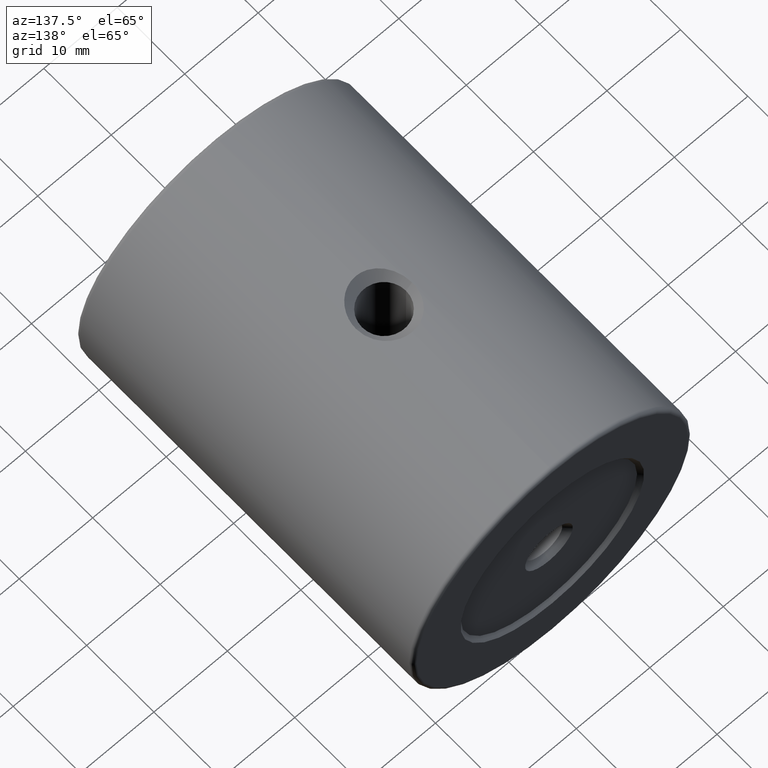
[diagram: clean part render]
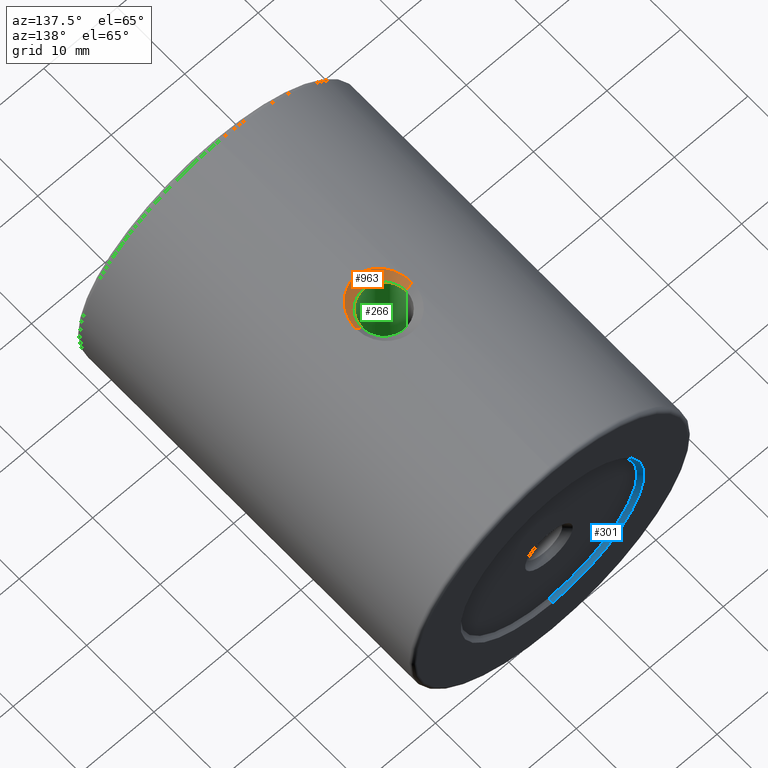
[diagram: same view with three faces highlighted in distinct colors, each labeled with its STEP entity id]
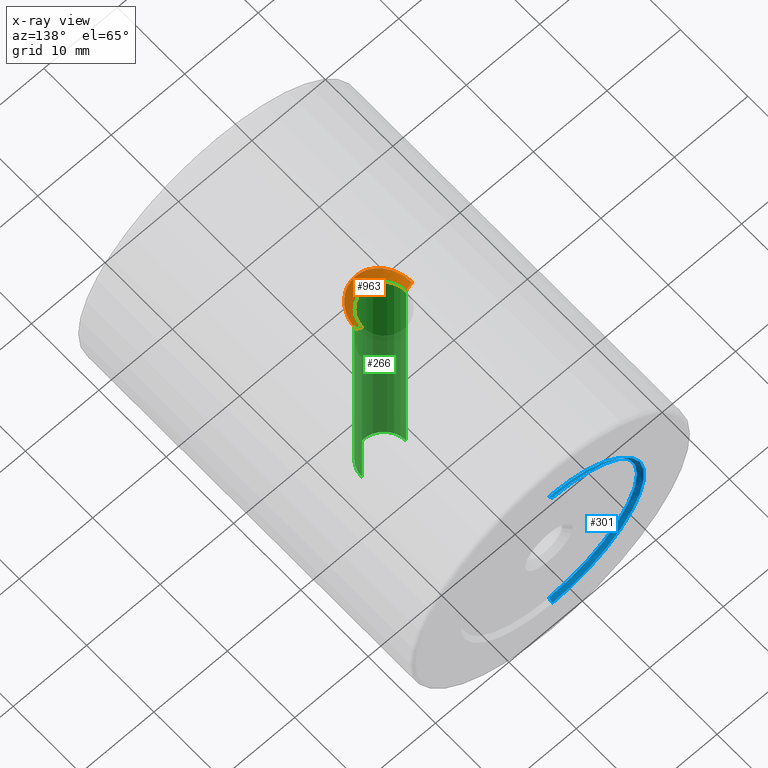
[diagram: x-ray of the same camera — body ghosted, the three highlighted faces saturated]
A machine part, auxiliary view with three faces highlighted in distinct colors.
The next image is the same camera in x-ray (body ghosted, the three faces saturated) — at least one of them is partly hidden behind the body in this view.
Their STEP definitions:

[orange] entity #963 — the highlighted conical surface has half-angle 45 deg.
#20 = CARTESIAN_POINT ( 'NONE',  ( -88.86003986455601478, -5.560364975193093251, 418.6496055284342788 ) ) ;
#25 = CARTESIAN_POINT ( 'NONE',  ( -81.88059113652985843, -6.288202399889226690, 418.7034922552546163 ) ) ;
#36 = VERTEX_POINT ( 'NONE', #340 ) ;
#45 = CARTESIAN_POINT ( 'NONE',  ( -87.61973751830021229, -7.539048035020909921, 418.8498653824453868 ) ) ;
#88 = DIRECTION ( 'NONE',  ( -0.7071067811865487940, 0.0000000000000000000, 0.7071067811865463515 ) ) ;
#90 = CARTESIAN_POINT ( 'NONE',  ( -89.04018469271750291, -4.524194045943173315, 418.6133848591762217 ) ) ;
#93 = EDGE_LOOP ( 'NONE', ( #197, #983, #478, #651, #832 ) ) ;
#101 = CARTESIAN_POINT ( 'NONE',  ( -82.29671814351611658, -6.957786961682561611, 418.7735023986901979 ) ) ;
#107 = CARTESIAN_POINT ( 'NONE',  ( -81.43586367851925445, -4.785232307264688068, 418.6180255036908306 ) ) ;
#111 = VECTOR ( 'NONE', #88, 1000.000000000000000 ) ;
#116 = CARTESIAN_POINT ( 'NONE',  ( -85.49146371113677390, -8.461339991674272198, 419.0000000000001705 ) ) ;
#117 = CARTESIAN_POINT ( 'NONE',  ( -82.63814515825626472, -7.352595677616392322, 418.8236191524364926 ) ) ;
#119 = DIRECTION ( 'NONE',  ( 0.0000000000000000000, 0.0000000000000000000, -1.000000000000000000 ) ) ;
#143 = CONICAL_SURFACE ( 'NONE', #724, 4.200000000000009059, 0.7853981633974500554 ) ;
#158 = DIRECTION ( 'NONE',  ( 0.7071067811865487940, -8.659560562354948882E-17, 0.7071067811865463515 ) ) ;
#197 = ORIENTED_EDGE ( 'NONE', *, *, #529, .F. ) ;
#231 = EDGE_CURVE ( 'NONE', #36, #260, #587, .T. ) ;
#233 = CARTESIAN_POINT ( 'NONE',  ( -89.42679983354143758, -4.261339991674283567, 419.0000000000000568 ) ) ;
#257 = CARTESIAN_POINT ( 'NONE',  ( -83.46626106639050136, -7.995107640163255702, 418.9197388689088370 ) ) ;
#260 = VERTEX_POINT ( 'NONE', #681 ) ;
#274 = CARTESIAN_POINT ( 'NONE',  ( -84.96243902164792416, -8.461339991674275751, 419.0000000000001137 ) ) ;
#287 = CARTESIAN_POINT ( 'NONE',  ( -87.20501299645449933, -7.859601616013272007, 418.8978900510489325 ) ) ;
#318 = CARTESIAN_POINT ( 'NONE',  ( -85.22679983354142053, -4.261339991674283567, 419.0000000000000568 ) ) ;
#332 = CARTESIAN_POINT ( 'NONE',  ( -89.01782207825233684, -4.784939022142112641, 418.6180084472278509 ) ) ;
#334 = EDGE_CURVE ( 'NONE', #260, #991, #646, .T. ) ;
#338 = CARTESIAN_POINT ( 'NONE',  ( -88.68189959692058721, -6.053472744008438156, 418.6834286230944713 ) ) ;
#340 = CARTESIAN_POINT ( 'NONE',  ( -82.22679983354142053, -4.261339991674283567, 417.8000000000000114 ) ) ;
#344 = CARTESIAN_POINT ( 'NONE',  ( -88.30796467933343763, -6.745178320961991325, 418.7489826282481999 ) ) ;
#437 = CARTESIAN_POINT ( 'NONE',  ( -82.14309753980985818, -6.741247472261910012, 418.7485603540634429 ) ) ;
#442 = DIRECTION ( 'NONE',  ( 1.000000000000000000, 0.0000000000000000000, 0.0000000000000000000 ) ) ;
#444 = CARTESIAN_POINT ( 'NONE',  ( -85.75119431850812646, -8.431120250548380213, 418.9944772180206769 ) ) ;
#450 = VECTOR ( 'NONE', #158, 1000.000000000000000 ) ;
#451 = LINE ( 'NONE', #768, #450 ) ;
#478 = ORIENTED_EDGE ( 'NONE', *, *, #334, .T. ) ;
#503 = CARTESIAN_POINT ( 'NONE',  ( -85.22679983354142053, -4.261339991674283567, 417.8000000000000114 ) ) ;
#506 = CARTESIAN_POINT ( 'NONE',  ( -85.22679983354142053, -8.461339991674268646, 419.0000000000000568 ) ) ;
#529 = EDGE_CURVE ( 'NONE', #36, #952, #451, .T. ) ;
#532 = CARTESIAN_POINT ( 'NONE',  ( -85.22679983354142053, -8.461339991674268646, 419.0000000000000568 ) ) ;
#552 = CARTESIAN_POINT ( 'NONE',  ( -85.22679983354142053, -8.461339991674268646, 419.0000000000000568 ) ) ;
#574 = CARTESIAN_POINT ( 'NONE',  ( -88.57188684336087192, -6.290580469037319489, 418.7036980113034588 ) ) ;
#584 = CARTESIAN_POINT ( 'NONE',  ( -81.59285872774556481, -5.558021363143371474, 418.6494685149854149 ) ) ;
#587 = CIRCLE ( 'NONE', #838, 3.000000000000002665 ) ;
#589 = CARTESIAN_POINT ( 'NONE',  ( -81.77082803723338600, -6.051458313143361245, 418.6832669197586370 ) ) ;
#605 = VERTEX_POINT ( 'NONE', #552 ) ;
#634 = DIRECTION ( 'NONE',  ( -0.0000000000000000000, -0.0000000000000000000, 1.000000000000000000 ) ) ;
#646 = LINE ( 'NONE', #233, #111 ) ;
#649 = CARTESIAN_POINT ( 'NONE',  ( -88.92822251687863400, -5.302205923223622719, 418.6360285018084824 ) ) ;
#651 = ORIENTED_EDGE ( 'NONE', *, *, #763, .T. ) ;
#660 = CARTESIAN_POINT ( 'NONE',  ( -88.15440500365676257, -6.961092752758728963, 418.7738934117829217 ) ) ;
#661 = CARTESIAN_POINT ( 'NONE',  ( -84.18986350246656514, -8.312315706571794749, 418.9733988301109093 ) ) ;
#670 = CARTESIAN_POINT ( 'NONE',  ( -81.52508446630257311, -5.300719478809653218, 418.6359698950037682 ) ) ;
#680 = CARTESIAN_POINT ( 'NONE',  ( -83.93808702169893365, -8.222923423920713404, 418.9577223027167747 ) ) ;
#681 = CARTESIAN_POINT ( 'NONE',  ( -88.22679983354142053, -4.261339991674283567, 417.8000000000000114 ) ) ;
#695 = CARTESIAN_POINT ( 'NONE',  ( -86.98410511525524669, -7.996885633606630961, 418.9200298249307366 ) ) ;
#699 = CARTESIAN_POINT ( 'NONE',  ( -89.04018469271751712, -4.261339991674283567, 418.6133848591761648 ) ) ;
#724 = AXIS2_PLACEMENT_3D ( 'NONE', #318, #634, #859 ) ;
#748 = CARTESIAN_POINT ( 'NONE',  ( -89.04018469271751712, -4.261339991674283567, 418.6133848591761648 ) ) ;
#757 = CARTESIAN_POINT ( 'NONE',  ( -81.41341497436532393, -4.524701080299160516, 418.6133848591761648 ) ) ;
#763 = EDGE_CURVE ( 'NONE', #991, #605, #837, .T. ) ;
#768 = CARTESIAN_POINT ( 'NONE',  ( -81.02679983354141768, -4.261339991674284455, 419.0000000000000568 ) ) ;
#790 = CARTESIAN_POINT ( 'NONE',  ( -81.41341497436532393, -4.261339991674279126, 418.6133848591761648 ) ) ;
#810 = B_SPLINE_CURVE_WITH_KNOTS ( 'NONE', 3,
 ( #506, #274, #970, #661, #680, #257, #812, #824, #117, #101, #437, #25, #589, #584, #670, #107, #757, #965 ),
 .UNSPECIFIED., .F., .F.,
 ( 4, 2, 2, 2, 2, 2, 2, 2, 4 ),
 ( 0.003733624680294762854, 0.004520577988407363350, 0.005307531296519963845, 0.006094484604632564341, 0.006881437912745166571, 0.007668391220857767934, 0.008455344528970369297, 0.009242297837082972395, 0.01002925114519557376 ),
 .UNSPECIFIED. ) ;
#812 = CARTESIAN_POINT ( 'NONE',  ( -83.24438980785724596, -7.856924346119599889, 418.8974619800173400 ) ) ;
#824 = CARTESIAN_POINT ( 'NONE',  ( -82.82757549099136440, -7.533607839044134558, 418.8490779973516851 ) ) ;
#832 = ORIENTED_EDGE ( 'NONE', *, *, #1013, .T. ) ;
#837 = B_SPLINE_CURVE_WITH_KNOTS ( 'NONE', 3,
 ( #748, #90, #332, #649, #20, #338, #574, #344, #660, #964, #45, #287, #695, #925, #988, #444, #116, #532 ),
 .UNSPECIFIED., .F., .F.,
 ( 4, 2, 2, 2, 2, 2, 2, 2, 4 ),
 ( 0.02262406464777516613, 0.02341192012650424731, 0.02419977560523332849, 0.02498763108396241314, 0.02577548656269149432, 0.02656334204142057551, 0.02735119752014966016, 0.02813905299887874134, 0.02892690847760782252 ),
 .UNSPECIFIED. ) ;
#838 = AXIS2_PLACEMENT_3D ( 'NONE', #503, #119, #442 ) ;
#859 = DIRECTION ( 'NONE',  ( -1.000000000000000000, 0.0000000000000000000, 0.0000000000000000000 ) ) ;
#925 = CARTESIAN_POINT ( 'NONE',  ( -86.51381476393198966, -8.223524199725767758, 418.9578280137350816 ) ) ;
#930 = FACE_OUTER_BOUND ( 'NONE', #93, .T. ) ;
#952 = VERTEX_POINT ( 'NONE', #790 ) ;
#963 = ADVANCED_FACE ( 'NONE', ( #930 ), #143, .F. ) ;
#964 = CARTESIAN_POINT ( 'NONE',  ( -87.81196888986544025, -7.356176429533654471, 418.8241028157862615 ) ) ;
#965 = CARTESIAN_POINT ( 'NONE',  ( -81.41341497436532393, -4.261339991674279126, 418.6133848591761648 ) ) ;
#970 = CARTESIAN_POINT ( 'NONE',  ( -84.69972560880194123, -8.430702186240790041, 418.9944016194976939 ) ) ;
#983 = ORIENTED_EDGE ( 'NONE', *, *, #231, .T. ) ;
#988 = CARTESIAN_POINT ( 'NONE',  ( -86.26127162816044347, -8.313090059122508535, 418.9735347910690848 ) ) ;
#991 = VERTEX_POINT ( 'NONE', #699 ) ;
#1013 = EDGE_CURVE ( 'NONE', #605, #952, #810, .T. ) ;

[blue] entity #301 — the highlighted conical surface has half-angle 45 deg.
#18 = VERTEX_POINT ( 'NONE', #402 ) ;
#62 = CIRCLE ( 'NONE', #295, 12.50000000000001066 ) ;
#68 = EDGE_CURVE ( 'NONE', #18, #836, #723, .T. ) ;
#86 = CARTESIAN_POINT ( 'NONE',  ( -85.22679983354142053, 20.73866000832571643, 387.5000000000000000 ) ) ;
#157 = VECTOR ( 'NONE', #863, 1000.000000000000000 ) ;
#240 = CARTESIAN_POINT ( 'NONE',  ( -85.22679983354142053, 20.23866000832571643, 400.0000000000000000 ) ) ;
#279 = CARTESIAN_POINT ( 'NONE',  ( -85.22679983354142053, 20.73866000832571643, 412.5000000000000568 ) ) ;
#289 = DIRECTION ( 'NONE',  ( -0.0000000000000000000, 1.000000000000000000, -0.0000000000000000000 ) ) ;
#295 = AXIS2_PLACEMENT_3D ( 'NONE', #796, #313, #870 ) ;
#301 = ADVANCED_FACE ( 'NONE', ( #917 ), #330, .F. ) ;
#313 = DIRECTION ( 'NONE',  ( 0.0000000000000000000, 1.000000000000000000, 0.0000000000000000000 ) ) ;
#330 = CONICAL_SURFACE ( 'NONE', #694, 12.50000000000001066, 0.7853981633974500554 ) ;
#331 = ORIENTED_EDGE ( 'NONE', *, *, #504, .F. ) ;
#402 = CARTESIAN_POINT ( 'NONE',  ( -85.22679983354142053, 20.23866000832571643, 412.0000000000000568 ) ) ;
#414 = ORIENTED_EDGE ( 'NONE', *, *, #68, .F. ) ;
#431 = VERTEX_POINT ( 'NONE', #944 ) ;
#480 = LINE ( 'NONE', #86, #157 ) ;
#504 = EDGE_CURVE ( 'NONE', #510, #18, #764, .T. ) ;
#510 = VERTEX_POINT ( 'NONE', #876 ) ;
#560 = DIRECTION ( 'NONE',  ( 0.0000000000000000000, 0.0000000000000000000, 1.000000000000000000 ) ) ;
#562 = DIRECTION ( 'NONE',  ( 0.0000000000000000000, 0.7071067811865463515, 0.7071067811865487940 ) ) ;
#628 = CARTESIAN_POINT ( 'NONE',  ( -85.22679983354142053, 20.73866000832571643, 400.0000000000000000 ) ) ;
#657 = VECTOR ( 'NONE', #562, 1000.000000000000000 ) ;
#694 = AXIS2_PLACEMENT_3D ( 'NONE', #628, #289, #851 ) ;
#723 = LINE ( 'NONE', #814, #657 ) ;
#764 = CIRCLE ( 'NONE', #849, 12.00000000000001066 ) ;
#769 = ORIENTED_EDGE ( 'NONE', *, *, #993, .T. ) ;
#773 = EDGE_LOOP ( 'NONE', ( #331, #805, #769, #414 ) ) ;
#796 = CARTESIAN_POINT ( 'NONE',  ( -85.22679983354142053, 20.73866000832571643, 400.0000000000000000 ) ) ;
#805 = ORIENTED_EDGE ( 'NONE', *, *, #891, .T. ) ;
#814 = CARTESIAN_POINT ( 'NONE',  ( -85.22679983354142053, 20.73866000832571643, 412.5000000000000568 ) ) ;
#836 = VERTEX_POINT ( 'NONE', #279 ) ;
#847 = DIRECTION ( 'NONE',  ( 0.0000000000000000000, 1.000000000000000000, 0.0000000000000000000 ) ) ;
#849 = AXIS2_PLACEMENT_3D ( 'NONE', #240, #847, #560 ) ;
#851 = DIRECTION ( 'NONE',  ( 0.0000000000000000000, 0.0000000000000000000, 1.000000000000000000 ) ) ;
#863 = DIRECTION ( 'NONE',  ( 8.659560562354948882E-17, 0.7071067811865463515, -0.7071067811865487940 ) ) ;
#870 = DIRECTION ( 'NONE',  ( 0.0000000000000000000, 0.0000000000000000000, 1.000000000000000000 ) ) ;
#876 = CARTESIAN_POINT ( 'NONE',  ( -85.22679983354142053, 20.23866000832571643, 388.0000000000000000 ) ) ;
#891 = EDGE_CURVE ( 'NONE', #510, #431, #480, .T. ) ;
#917 = FACE_OUTER_BOUND ( 'NONE', #773, .T. ) ;
#944 = CARTESIAN_POINT ( 'NONE',  ( -85.22679983354142053, 20.73866000832571643, 387.5000000000000000 ) ) ;
#993 = EDGE_CURVE ( 'NONE', #431, #836, #62, .T. ) ;

[green] entity #266 — the highlighted cylindrical surface (edge-blend (fillet) strip) has radius 3 mm, axis along (-0, -0, 1).
#36 = VERTEX_POINT ( 'NONE', #340 ) ;
#67 = DIRECTION ( 'NONE',  ( -0.0000000000000000000, -0.0000000000000000000, 1.000000000000000000 ) ) ;
#85 = EDGE_CURVE ( 'NONE', #885, #260, #736, .T. ) ;
#112 = DIRECTION ( 'NONE',  ( -1.000000000000000000, 0.0000000000000000000, 0.0000000000000000000 ) ) ;
#119 = DIRECTION ( 'NONE',  ( 0.0000000000000000000, 0.0000000000000000000, -1.000000000000000000 ) ) ;
#131 = CYLINDRICAL_SURFACE ( 'NONE', #509, 3.000000000000002665 ) ;
#135 = DIRECTION ( 'NONE',  ( -0.0000000000000000000, -0.0000000000000000000, 1.000000000000000000 ) ) ;
#210 = CIRCLE ( 'NONE', #791, 3.000000000000002665 ) ;
#231 = EDGE_CURVE ( 'NONE', #36, #260, #587, .T. ) ;
#260 = VERTEX_POINT ( 'NONE', #681 ) ;
#266 = ADVANCED_FACE ( 'NONE', ( #842 ), #131, .F. ) ;
#282 = VERTEX_POINT ( 'NONE', #376 ) ;
#317 = VECTOR ( 'NONE', #135, 1000.000000000000000 ) ;
#340 = CARTESIAN_POINT ( 'NONE',  ( -82.22679983354142053, -4.261339991674283567, 417.8000000000000114 ) ) ;
#347 = DIRECTION ( 'NONE',  ( -0.0000000000000000000, -0.0000000000000000000, 1.000000000000000000 ) ) ;
#363 = ORIENTED_EDGE ( 'NONE', *, *, #635, .T. ) ;
#376 = CARTESIAN_POINT ( 'NONE',  ( -82.22679983354142053, -4.261339991674281791, 382.2000000000000455 ) ) ;
#442 = DIRECTION ( 'NONE',  ( 1.000000000000000000, 0.0000000000000000000, 0.0000000000000000000 ) ) ;
#481 = CARTESIAN_POINT ( 'NONE',  ( -82.22679983354142053, -4.261339991674281791, 381.0000000000000000 ) ) ;
#503 = CARTESIAN_POINT ( 'NONE',  ( -85.22679983354142053, -4.261339991674283567, 417.8000000000000114 ) ) ;
#509 = AXIS2_PLACEMENT_3D ( 'NONE', #622, #67, #528 ) ;
#527 = EDGE_CURVE ( 'NONE', #282, #36, #990, .T. ) ;
#528 = DIRECTION ( 'NONE',  ( 1.000000000000000000, 0.0000000000000000000, 0.0000000000000000000 ) ) ;
#587 = CIRCLE ( 'NONE', #838, 3.000000000000002665 ) ;
#622 = CARTESIAN_POINT ( 'NONE',  ( -85.22679983354142053, -4.261339991674281791, 381.0000000000000000 ) ) ;
#626 = CARTESIAN_POINT ( 'NONE',  ( -88.22679983354142053, -4.261339991674281791, 382.2000000000000455 ) ) ;
#635 = EDGE_CURVE ( 'NONE', #282, #885, #210, .T. ) ;
#681 = CARTESIAN_POINT ( 'NONE',  ( -88.22679983354142053, -4.261339991674283567, 417.8000000000000114 ) ) ;
#688 = ORIENTED_EDGE ( 'NONE', *, *, #85, .T. ) ;
#736 = LINE ( 'NONE', #868, #804 ) ;
#783 = ORIENTED_EDGE ( 'NONE', *, *, #231, .F. ) ;
#791 = AXIS2_PLACEMENT_3D ( 'NONE', #898, #886, #112 ) ;
#804 = VECTOR ( 'NONE', #347, 1000.000000000000000 ) ;
#820 = ORIENTED_EDGE ( 'NONE', *, *, #527, .F. ) ;
#838 = AXIS2_PLACEMENT_3D ( 'NONE', #503, #119, #442 ) ;
#842 = FACE_OUTER_BOUND ( 'NONE', #902, .T. ) ;
#868 = CARTESIAN_POINT ( 'NONE',  ( -88.22679983354142053, -4.261339991674281791, 381.0000000000000000 ) ) ;
#885 = VERTEX_POINT ( 'NONE', #626 ) ;
#886 = DIRECTION ( 'NONE',  ( -0.0000000000000000000, -0.0000000000000000000, -1.000000000000000000 ) ) ;
#898 = CARTESIAN_POINT ( 'NONE',  ( -85.22679983354142053, -4.261339991674283567, 382.2000000000000455 ) ) ;
#902 = EDGE_LOOP ( 'NONE', ( #363, #688, #783, #820 ) ) ;
#990 = LINE ( 'NONE', #481, #317 ) ;